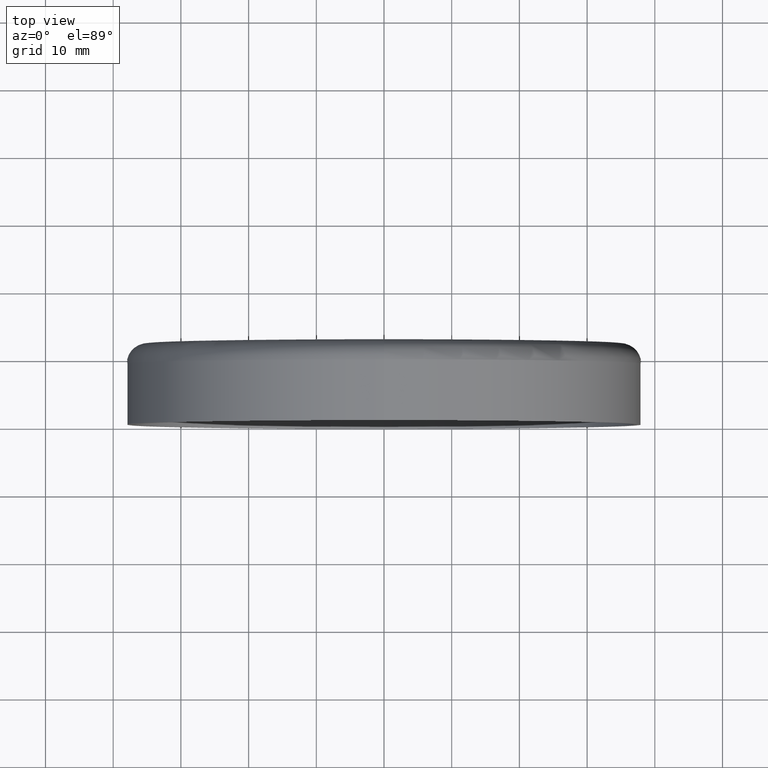
[diagram: clean part render]
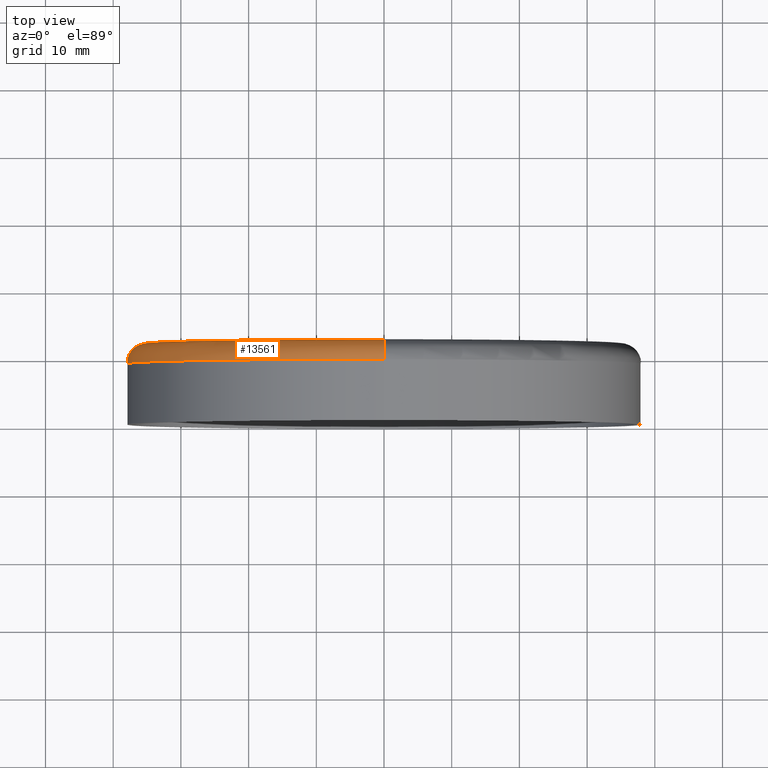
[diagram: same view with one face highlighted and labeled with its STEP entity id]
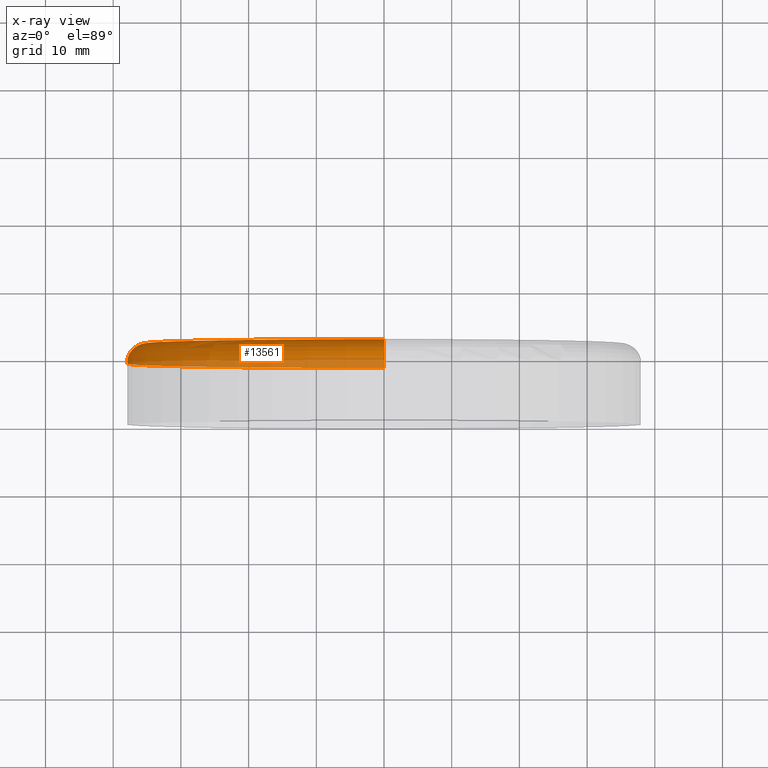
[diagram: x-ray of the same camera — body ghosted, the highlighted face saturated]
A machine part, top view. The second image highlights one B-rep face of the part: STEP entity #13561.
The next image is the same camera in x-ray: the body ghosted, the highlighted face saturated — about 27% of this face is hidden behind the body in this view.
In plain terms, the highlighted toroidal blend (fillet) surface has major radius 35 mm and minor (blend) radius 3 mm.
Its self-contained STEP definition (entity closure, byte-faithful):
#565 = EDGE_CURVE ( 'NONE', #4237, #6729, #791, .T. ) ;
#751 = DIRECTION ( 'NONE',  ( 0.000000000000000000, 0.000000000000000000, 1.000000000000000000 ) ) ;
#791 = CIRCLE ( 'NONE', #7996, 3.000000000000002665 ) ;
#939 = CARTESIAN_POINT ( 'NONE',  ( 0.000000000000000000, 12.00000000000000000, -35.00000000000000000 ) ) ;
#1153 = DIRECTION ( 'NONE',  ( 0.000000000000000000, 0.000000000000000000, -1.000000000000000000 ) ) ;
#2060 = DIRECTION ( 'NONE',  ( 0.000000000000000000, 0.000000000000000000, -1.000000000000000000 ) ) ;
#2308 = AXIS2_PLACEMENT_3D ( 'NONE', #14996, #11511, #2060 ) ;
#2957 = ORIENTED_EDGE ( 'NONE', *, *, #565, .F. ) ;
#4162 = CIRCLE ( 'NONE', #2308, 35.00000000000000000 ) ;
#4237 = VERTEX_POINT ( 'NONE', #14831 ) ;
#4562 = EDGE_CURVE ( 'NONE', #6946, #6920, #9210, .T. ) ;
#5653 = CARTESIAN_POINT ( 'NONE',  ( 0.000000000000000000, 9.000000000000001776, -38.00000000000000711 ) ) ;
#6418 = CARTESIAN_POINT ( 'NONE',  ( 4.286263797015736496E-15, 9.000000000000001776, 35.00000000000000000 ) ) ;
#6519 = DIRECTION ( 'NONE',  ( 1.000000000000000000, 0.000000000000000000, -1.224646799147353207E-16 ) ) ;
#6729 = VERTEX_POINT ( 'NONE', #8495 ) ;
#6787 = ORIENTED_EDGE ( 'NONE', *, *, #12866, .F. ) ;
#6920 = VERTEX_POINT ( 'NONE', #5653 ) ;
#6946 = VERTEX_POINT ( 'NONE', #939 ) ;
#7112 = EDGE_LOOP ( 'NONE', ( #2957, #14834, #9553, #6787 ) ) ;
#7732 = CARTESIAN_POINT ( 'NONE',  ( 0.000000000000000000, 9.000000000000001776, 0.000000000000000000 ) ) ;
#7996 = AXIS2_PLACEMENT_3D ( 'NONE', #6418, #6519, #8911 ) ;
#8495 = CARTESIAN_POINT ( 'NONE',  ( 4.653657836759942730E-15, 9.000000000000001776, 38.00000000000000711 ) ) ;
#8911 = DIRECTION ( 'NONE',  ( -1.224646799147351975E-16, 0.000000000000000000, -1.000000000000000000 ) ) ;
#9201 = DIRECTION ( 'NONE',  ( -0.000000000000000000, -1.000000000000000000, -0.000000000000000000 ) ) ;
#9210 = CIRCLE ( 'NONE', #15166, 3.000000000000002665 ) ;
#9270 = TOROIDAL_SURFACE ( 'NONE', #11673, 35.00000000000000000, 3.000000000000000888 ) ;
#9553 = ORIENTED_EDGE ( 'NONE', *, *, #4562, .T. ) ;
#9886 = EDGE_CURVE ( 'NONE', #4237, #6946, #4162, .T. ) ;
#11217 = DIRECTION ( 'NONE',  ( -0.000000000000000000, -1.000000000000000000, -0.000000000000000000 ) ) ;
#11511 = DIRECTION ( 'NONE',  ( -0.000000000000000000, -1.000000000000000000, -0.000000000000000000 ) ) ;
#11658 = CIRCLE ( 'NONE', #13247, 38.00000000000000711 ) ;
#11673 = AXIS2_PLACEMENT_3D ( 'NONE', #7732, #11217, #13632 ) ;
#11700 = CARTESIAN_POINT ( 'NONE',  ( 0.000000000000000000, 9.000000000000001776, 0.000000000000000000 ) ) ;
#11812 = FACE_OUTER_BOUND ( 'NONE', #7112, .T. ) ;
#12866 = EDGE_CURVE ( 'NONE', #6729, #6920, #11658, .T. ) ;
#13247 = AXIS2_PLACEMENT_3D ( 'NONE', #11700, #9201, #1153 ) ;
#13561 = ADVANCED_FACE ( 'NONE', ( #11812 ), #9270, .T. ) ;
#13632 = DIRECTION ( 'NONE',  ( 0.000000000000000000, 0.000000000000000000, -1.000000000000000000 ) ) ;
#13647 = CARTESIAN_POINT ( 'NONE',  ( 0.000000000000000000, 9.000000000000001776, -35.00000000000000000 ) ) ;
#14822 = DIRECTION ( 'NONE',  ( -1.000000000000000000, 0.000000000000000000, 0.000000000000000000 ) ) ;
#14831 = CARTESIAN_POINT ( 'NONE',  ( 4.469960816887840007E-15, 12.00000000000000000, 35.00000000000000000 ) ) ;
#14834 = ORIENTED_EDGE ( 'NONE', *, *, #9886, .T. ) ;
#14996 = CARTESIAN_POINT ( 'NONE',  ( 0.000000000000000000, 12.00000000000000000, 0.000000000000000000 ) ) ;
#15166 = AXIS2_PLACEMENT_3D ( 'NONE', #13647, #14822, #751 ) ;